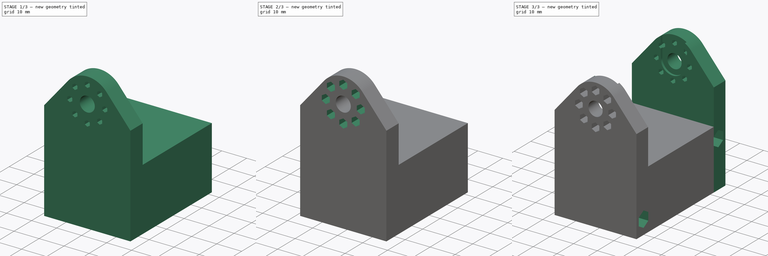
[diagram: build sequence overview — one tinted view per stage of 3, left to right]
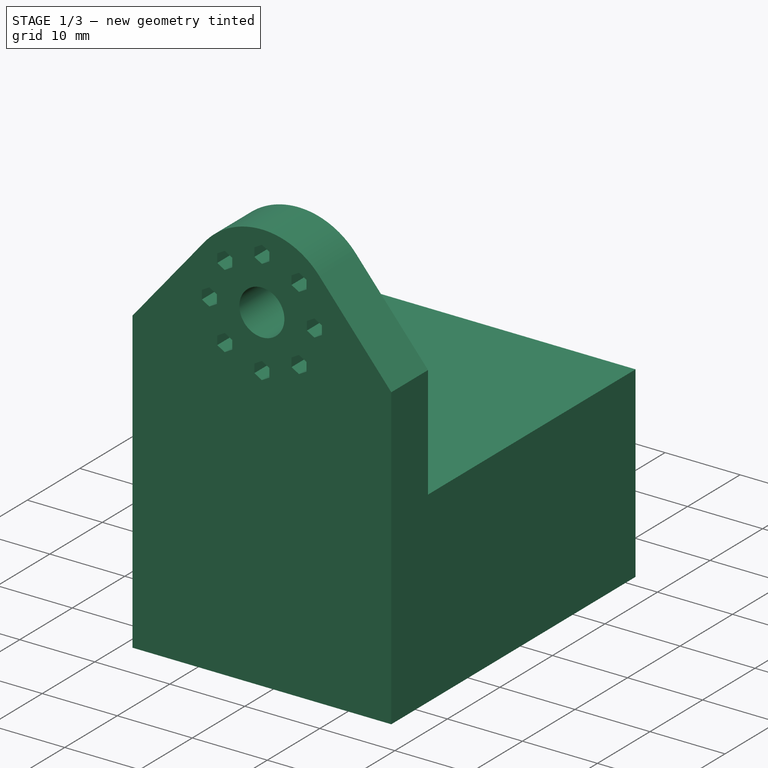
[diagram: stage 1 of 3 — iso view after this stage's code; geometry added in this stage tinted green]
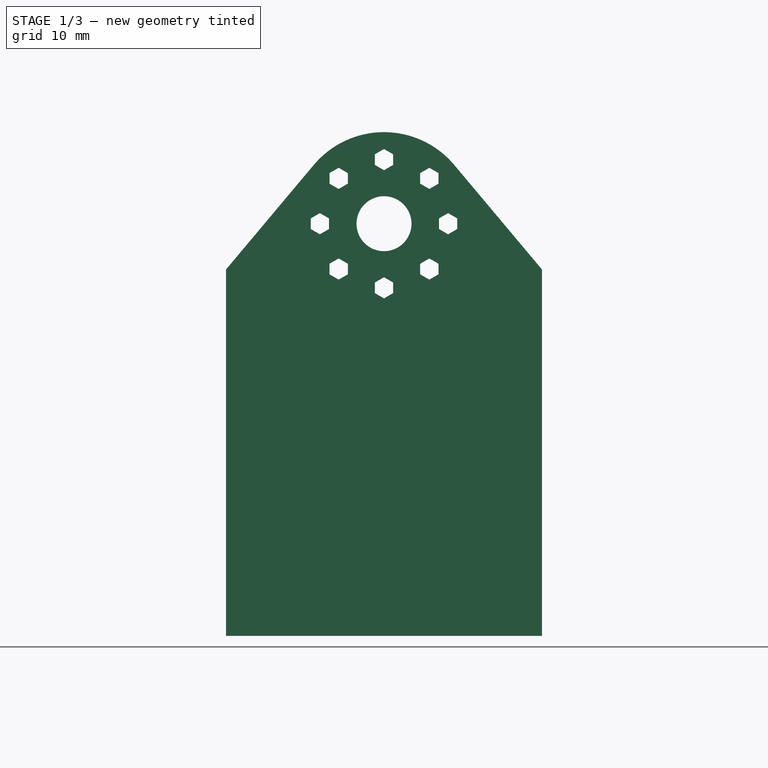
[diagram: stage 1 of 3 — front view after this stage's code; geometry added in this stage tinted green]
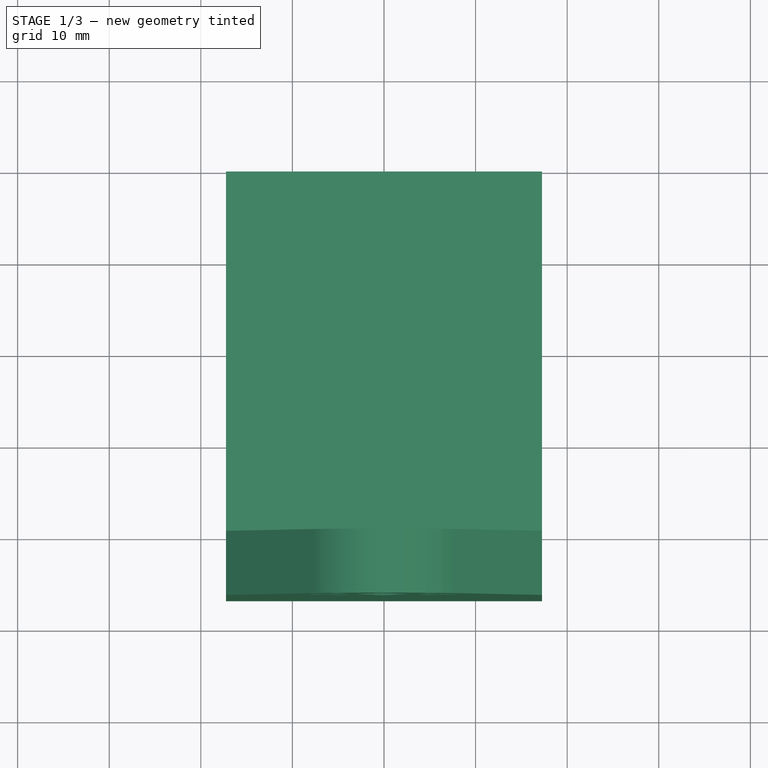
[diagram: stage 1 of 3 — top view after this stage's code; geometry added in this stage tinted green]
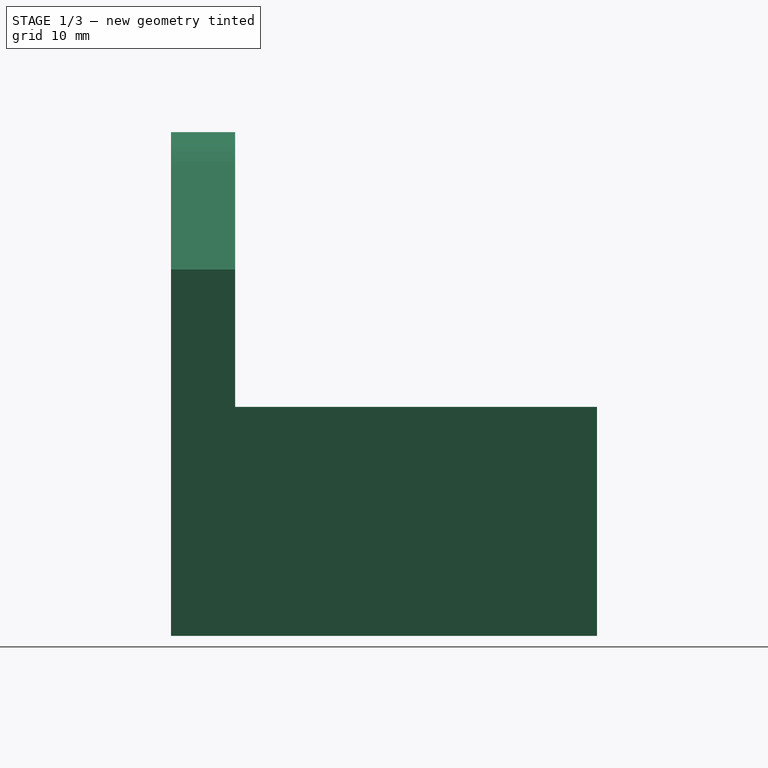
[diagram: stage 1 of 3 — right view after this stage's code; geometry added in this stage tinted green]
FCSTD DOCUMENT  (FreeCAD 0.21R33668 +26 (Git))
Label: Leg_roll_pitch
License: All rights reserved
LicenseURL: https://en.wikipedia.org/wiki/All_rights_reserved
objects: Sketcher::SketchObject×6, PartDesign::Pocket×4, PartDesign::Pad×2, PartDesign::Chamfer×1, PartDesign::Mirrored×1, PartDesign::Body×1
note: 22 computed .brp shape members not serialized (recipe doc carries the construction recipe); baked Part::Feature solids carry a one-line shape summary decoded from their .brp

FEATURE [Sketcher::SketchObject] Sketch001
  FullyConstrained = true
  MapMode = 5
  Support = -> [XY_Plane]
  expr: Constraints[11] = 39.5 - 2 - 2 - 1
  sketch-geometry (5):
    g0: LineSegment StartX=17.25 StartY=-19.75 StartZ=0 EndX=17.25 EndY=19.75 EndZ=0
    g1: LineSegment StartX=17.25 StartY=19.75 StartZ=0 EndX=-17.25 EndY=19.75 EndZ=0
    g2: LineSegment StartX=-17.25 StartY=19.75 StartZ=0 EndX=-17.25 EndY=-19.75 EndZ=0
    g3: LineSegment StartX=-17.25 StartY=-19.75 StartZ=0 EndX=17.25 EndY=-19.75 EndZ=0
    g4: GeomPoint X=0 Y=0 Z=0
  constraints (12):
    c: Coincident(g0,g1)
    c: Coincident(g1,g2)
    c: Coincident(g2,g3)
    c: Coincident(g3,g0)
    c: Horizontal(g1)
    c: Horizontal(g3)
    c: Vertical(g0)
    c: Vertical(g2)
    c: Symmetric(g1,g0,g4)
    c: Coincident(g4,g-1)
    c: DistanceY(g2,g2) = 39.5
    c: DistanceX(g1,g1) = 34.5
FEATURE [PartDesign::Pad] Pad
  Direction = (0,0,1)
  Length = 25
  Length2 = 10
  Profile = -> Sketch001
  ReferenceAxis = -> Sketch001 [N_Axis]
  Type = 0
FEATURE [Sketcher::SketchObject] Sketch
  ExternalGeometry = -> [Pad]
  FullyConstrained = true
  MapMode = 5
  Placement = pos=(0,-19.75,0) rot=(1,0,0;1.5708rad)
  Support = -> [Pad]
  sketch-geometry (7):
    g0: Circle CenterX=0 CenterY=45 CenterZ=0 NormalX=0 NormalY=0 NormalZ=1 AngleXU=0 Radius=3
    g1: ArcOfCircle CenterX=0 CenterY=45 CenterZ=0 NormalX=0 NormalY=0 NormalZ=1 AngleXU=0 Radius=10 StartAngle=0.698154 EndAngle=2.44344
    g2: LineSegment StartX=-17.25 StartY=0 StartZ=0 EndX=17.25 EndY=0 EndZ=0
    g3: LineSegment StartX=-7.6603 StartY=51.428 StartZ=0 EndX=-17.25 EndY=40 EndZ=0
    g4: LineSegment StartX=-17.25 StartY=40 StartZ=0 EndX=-17.25 EndY=0 EndZ=0
    g5: LineSegment StartX=7.6603 StartY=51.428 StartZ=0 EndX=17.25 EndY=40 EndZ=0
    g6: LineSegment StartX=17.25 StartY=40 StartZ=0 EndX=17.25 EndY=0 EndZ=0
  constraints (17):
    c: Coincident(g1,g0)
    c: Coincident(g2,g-3)
    c: Coincident(g2,g-4)
    c: Coincident(g4,g3)
    c: Coincident(g4,g2)
    c: Coincident(g6,g5)
    c: Coincident(g6,g2)
    c: PointOnObject(g-3,g4)
    c: PointOnObject(g-4,g6)
    c: Tangent(g3,g1) = -1.5708
    c: Tangent(g5,g1) = 1.5708
    c: PointOnObject(g0,g-2)
    c: DistanceY(g-4,g0) = 20
    c: DistanceY(g-4,g5) = 15
    c: Equal(g4,g6)
    c: Diameter(g1) = 20
    c: Diameter(g0) = 6
FEATURE [PartDesign::Pad] Pad001
  BaseFeature = -> Pad
  Direction = (0,-1,2e-16)
  Length = 7
  Length2 = 10
  Profile = -> Sketch
  ReferenceAxis = -> Sketch [N_Axis]
  Type = 0
FEATURE [Sketcher::SketchObject] Sketch002
  ExternalGeometry = -> [Pad001]
  FullyConstrained = true
  MapMode = 5
  Placement = pos=(0,-26.75,5.3e-15) rot=(1,0,0;1.5708rad)
  Support = -> [Pad001]
  sketch-geometry (60):
    g0: Circle CenterX=0 CenterY=45 CenterZ=0 NormalX=0 NormalY=0 NormalZ=1 AngleXU=0 Radius=7
    g1: LineSegment StartX=0 StartY=39.1547 StartZ=0 EndX=-1 EndY=38.5774 EndZ=0
    g2: LineSegment StartX=-1 StartY=38.5774 StartZ=0 EndX=-1 EndY=37.4226 EndZ=0
    g3: LineSegment StartX=-1 StartY=37.4226 StartZ=0 EndX=0 EndY=36.8453 EndZ=0
    g4: LineSegment StartX=0 StartY=36.8453 StartZ=0 EndX=1 EndY=37.4226 EndZ=0
    g5: LineSegment StartX=1 StartY=37.4226 StartZ=0 EndX=1 EndY=38.5774 EndZ=0
    g6: LineSegment StartX=1 StartY=38.5774 StartZ=0 EndX=0 EndY=39.1547 EndZ=0
    g7: Circle CenterX=0 CenterY=38 CenterZ=0 NormalX=0 NormalY=0 NormalZ=1 AngleXU=0 Radius=1.1547
    g8: Circle CenterX=0 CenterY=38 CenterZ=0 NormalX=0 NormalY=0 NormalZ=1 AngleXU=0 Radius=1
    g9: LineSegment StartX=-6 StartY=45.5774 StartZ=0 EndX=-7 EndY=46.1547 EndZ=0
    g10: LineSegment StartX=-7 StartY=46.1547 StartZ=0 EndX=-8 EndY=45.5774 EndZ=0
    g11: LineSegment StartX=-8 StartY=45.5774 StartZ=0 EndX=-8 EndY=44.4226 EndZ=0
    g12: LineSegment StartX=-8 StartY=44.4226 StartZ=0 EndX=-7 EndY=43.8453 EndZ=0
    g13: LineSegment StartX=-7 StartY=43.8453 StartZ=0 EndX=-6 EndY=44.4226 EndZ=0
    g14: LineSegment StartX=-6 StartY=44.4226 StartZ=0 EndX=-6 EndY=45.5774 EndZ=0
    g15: Circle CenterX=-7 CenterY=45 CenterZ=0 NormalX=0 NormalY=0 NormalZ=1 AngleXU=0 Radius=1.1547
    g16: LineSegment StartX=1 StartY=51.4226 StartZ=0 EndX=1 EndY=52.5774 EndZ=0
    g17: LineSegment StartX=1 StartY=52.5774 StartZ=0 EndX=4.92218e-11 EndY=53.1547 EndZ=0
    g18: LineSegment StartX=4.92218e-11 StartY=53.1547 StartZ=0 EndX=-1 EndY=52.5774 EndZ=0
    g19: LineSegment StartX=-1 StartY=52.5774 StartZ=0 EndX=-1 EndY=51.4226 EndZ=0
    g20: LineSegment StartX=-1 StartY=51.4226 StartZ=0 EndX=-8.864e-13 EndY=50.8453 EndZ=0
    g21: LineSegment StartX=-8.864e-13 StartY=50.8453 StartZ=0 EndX=1 EndY=51.4226 EndZ=0
    g22: Circle CenterX=0 CenterY=52 CenterZ=0 NormalX=0 NormalY=0 NormalZ=1 AngleXU=0 Radius=1.1547
    g23: LineSegment StartX=8 StartY=44.4226 StartZ=0 EndX=8 EndY=45.5774 EndZ=0
    g24: LineSegment StartX=8 StartY=45.5774 StartZ=0 EndX=7 EndY=46.1547 EndZ=0
    g25: LineSegment StartX=7 StartY=46.1547 StartZ=0 EndX=6 EndY=45.5774 EndZ=0
    g26: LineSegment StartX=6 StartY=45.5774 StartZ=0 EndX=6 EndY=44.4226 EndZ=0
    g27: LineSegment StartX=6 StartY=44.4226 StartZ=0 EndX=7 EndY=43.8453 EndZ=0
    g28: LineSegment StartX=7 StartY=43.8453 StartZ=0 EndX=8 EndY=44.4226 EndZ=0
    g29: Circle CenterX=7 CenterY=45 CenterZ=0 NormalX=0 NormalY=0 NormalZ=1 AngleXU=0 Radius=1.1547
    g30: LineSegment StartX=4.94975 StartY=51.1044 StartZ=0 EndX=3.94975 EndY=50.5271 EndZ=0
    g31: LineSegment StartX=3.94975 StartY=50.5271 StartZ=0 EndX=3.94975 EndY=49.3724 EndZ=0
    g32: LineSegment StartX=3.94975 StartY=49.3724 StartZ=0 EndX=4.94975 EndY=48.795 EndZ=0
    g33: LineSegment StartX=4.94975 StartY=48.795 StartZ=0 EndX=5.94975 EndY=49.3724 EndZ=0
    g34: LineSegment StartX=5.94975 StartY=49.3724 StartZ=0 EndX=5.94975 EndY=50.5271 EndZ=0
    g35: LineSegment StartX=5.94975 StartY=50.5271 StartZ=0 EndX=4.94975 EndY=51.1044 EndZ=0
    g36: Circle CenterX=4.94975 CenterY=49.9497 CenterZ=0 NormalX=0 NormalY=0 NormalZ=1 AngleXU=0 Radius=1.1547
    g37: LineSegment StartX=-4.94975 StartY=51.1044 StartZ=0 EndX=-5.94975 EndY=50.5271 EndZ=0
    g38: LineSegment StartX=-5.94975 StartY=50.5271 StartZ=0 EndX=-5.94975 EndY=49.3724 EndZ=0
    g39: LineSegment StartX=-5.94975 StartY=49.3724 StartZ=0 EndX=-4.94975 EndY=48.795 EndZ=0
    g40: LineSegment StartX=-4.94975 StartY=48.795 StartZ=0 EndX=-3.94975 EndY=49.3724 EndZ=0
    g41: LineSegment StartX=-3.94975 StartY=49.3724 StartZ=0 EndX=-3.94975 EndY=50.5271 EndZ=0
    g42: LineSegment StartX=-3.94975 StartY=50.5271 StartZ=0 EndX=-4.94975 EndY=51.1044 EndZ=0
    g43: Circle CenterX=-4.94975 CenterY=49.9497 CenterZ=0 NormalX=0 NormalY=0 NormalZ=1 AngleXU=0 Radius=1.1547
    g44: LineSegment StartX=-4.94975 StartY=41.205 StartZ=0 EndX=-5.94975 EndY=40.6276 EndZ=0
    g45: LineSegment StartX=-5.94975 StartY=40.6276 StartZ=0 EndX=-5.94975 EndY=39.4729 EndZ=0
    g46: LineSegment StartX=-5.94975 StartY=39.4729 StartZ=0 EndX=-4.94975 EndY=38.8956 EndZ=0
    g47: LineSegment StartX=-4.94975 StartY=38.8956 StartZ=0 EndX=-3.94975 EndY=39.4729 EndZ=0
    g48: LineSegment StartX=-3.94975 StartY=39.4729 StartZ=0 EndX=-3.94975 EndY=40.6276 EndZ=0
    g49: LineSegment StartX=-3.94975 StartY=40.6276 StartZ=0 EndX=-4.94975 EndY=41.205 EndZ=0
    g50: Circle CenterX=-4.94975 CenterY=40.0503 CenterZ=0 NormalX=0 NormalY=0 NormalZ=1 AngleXU=0 Radius=1.1547
    g51: LineSegment StartX=4.94975 StartY=41.205 StartZ=0 EndX=3.94975 EndY=40.6276 EndZ=0
    g52: LineSegment StartX=3.94975 StartY=40.6276 StartZ=0 EndX=3.94975 EndY=39.4729 EndZ=0
    g53: LineSegment StartX=3.94975 StartY=39.4729 StartZ=0 EndX=4.94975 EndY=38.8956 EndZ=0
    g54: LineSegment StartX=4.94975 StartY=38.8956 StartZ=0 EndX=5.94975 EndY=39.4729 EndZ=0
    g55: LineSegment StartX=5.94975 StartY=39.4729 StartZ=0 EndX=5.94975 EndY=40.6276 EndZ=0
    g56: LineSegment StartX=5.94975 StartY=40.6276 StartZ=0 EndX=4.94975 EndY=41.205 EndZ=0
    g57: Circle CenterX=4.94975 CenterY=40.0503 CenterZ=0 NormalX=0 NormalY=0 NormalZ=1 AngleXU=0 Radius=1.1547
    g58: LineSegment StartX=-4.94975 StartY=49.9497 StartZ=0 EndX=4.94975 EndY=40.0503 EndZ=0
    g59: LineSegment StartX=-4.94975 StartY=40.0503 StartZ=0 EndX=4.94975 EndY=49.9497 EndZ=0
  constraints (144):
    c: Coincident(g0,g-3)
    c: Diameter(g0) = 14
    c: Coincident(g1,g2)
    c: Coincident(g2,g3)
    c: Coincident(g3,g4)
    c: Coincident(g4,g5)
    c: Coincident(g5,g6)
    c: Coincident(g6,g1)
    c: Equal(g1, g2-g6) x5
    c: PointOnObject(g1,g7)
    c: PointOnObject(g2,g7)
    c: PointOnObject(g3,g7)
    c: PointOnObject(g4,g7)
    c: PointOnObject(g5,g7)
    c: PointOnObject(g6,g7)
    c: PointOnObject(g7,g0)
    c: PointOnObject(g7,g-2)
    c: PointOnObject(g1,g-2)
    c: Coincident(g8,g7)
    c: Diameter(g8) = 2
    c: Tangent(g8,g6)
    c: Coincident(g9,g10)
    c: Coincident(g10,g11)
    c: Coincident(g11,g12)
    c: Coincident(g12,g13)
    c: Coincident(g13,g14)
    c: Coincident(g14,g9)
    c: Equal(g9, g10-g14) x5
    c: PointOnObject(g9,g15)
    c: PointOnObject(g10,g15)
    c: PointOnObject(g11,g15)
    c: PointOnObject(g12,g15)
    c: PointOnObject(g13,g15)
    c: PointOnObject(g14,g15)
    c: PointOnObject(g15,g0)
    c: Coincident(g16,g17)
    c: Coincident(g17,g18)
    c: Coincident(g18,g19)
    c: Coincident(g19,g20)
    c: Coincident(g20,g21)
    c: Coincident(g21,g16)
    c: Equal(g16, g17-g21) x5
    c: PointOnObject(g16,g22)
    c: PointOnObject(g17,g22)
    c: PointOnObject(g18,g22)
    c: PointOnObject(g19,g22)
    c: PointOnObject(g20,g22)
    c: PointOnObject(g21,g22)
    c: PointOnObject(g22,g0)
    c: Coincident(g23,g24)
    c: Coincident(g24,g25)
    c: Coincident(g25,g26)
    c: Coincident(g26,g27)
    c: Coincident(g27,g28)
    c: Coincident(g28,g23)
    c: Equal(g23, g24-g28) x5
    c: PointOnObject(g23,g29)
    c: PointOnObject(g24,g29)
    c: PointOnObject(g25,g29)
    c: PointOnObject(g26,g29)
    c: PointOnObject(g27,g29)
    c: PointOnObject(g28,g29)
    c: PointOnObject(g29,g0)
    c: Coincident(g30,g31)
    c: Coincident(g31,g32)
    c: Coincident(g32,g33)
    c: Coincident(g33,g34)
    c: Coincident(g34,g35)
    c: Coincident(g35,g30)
    c: Equal(g30, g31-g35) x5
    c: PointOnObject(g30,g36)
    c: PointOnObject(g31,g36)
    c: PointOnObject(g32,g36)
    c: PointOnObject(g33,g36)
    c: PointOnObject(g34,g36)
    c: PointOnObject(g35,g36)
    c: PointOnObject(g36,g0)
    c: Coincident(g37,g38)
    c: Coincident(g38,g39)
    c: Coincident(g39,g40)
    c: Coincident(g40,g41)
    c: Coincident(g41,g42)
    c: Coincident(g42,g37)
    c: Equal(g37, g38-g42) x5
    c: PointOnObject(g37,g43)
    c: PointOnObject(g38,g43)
    c: PointOnObject(g39,g43)
    c: PointOnObject(g40,g43)
    c: PointOnObject(g41,g43)
    c: PointOnObject(g42,g43)
    c: PointOnObject(g43,g0)
    c: Coincident(g44,g45)
    c: Coincident(g45,g46)
    c: Coincident(g46,g47)
    c: Coincident(g47,g48)
    c: Coincident(g48,g49)
    c: Coincident(g49,g44)
    c: Equal(g44, g45-g49) x5
    c: PointOnObject(g44,g50)
    c: PointOnObject(g45,g50)
    c: PointOnObject(g46,g50)
    c: PointOnObject(g47,g50)
    c: PointOnObject(g48,g50)
    c: PointOnObject(g49,g50)
    c: PointOnObject(g50,g0)
    c: Coincident(g51,g52)
    c: Coincident(g52,g53)
    c: Coincident(g53,g54)
    c: Coincident(g54,g55)
    c: Coincident(g55,g56)
    c: Coincident(g56,g51)
    c: Equal(g51, g52-g56) x5
    c: PointOnObject(g51,g57)
    c: PointOnObject(g52,g57)
    c: PointOnObject(g53,g57)
    c: PointOnObject(g54,g57)
    c: PointOnObject(g55,g57)
    c: PointOnObject(g56,g57)
    c: PointOnObject(g57,g0)
    c: PointOnObject(g22,g-2)
    c: Equal(g50,g7)
    c: Equal(g7,g15)
    c: Equal(g15,g43)
    c: Equal(g43,g22)
    c: Equal(g22,g36)
    c: Equal(g36,g29)
    c: Equal(g29,g57)
    c: Vertical(g48)
    c: Vertical(g14)
    c: Vertical(g41)
    c: Vertical(g34)
    c: Vertical(g23)
    c: Vertical(g55)
    c: Horizontal(g0,g29)
    c: Horizontal(g15,g0)
    c: Coincident(g58,g43)
    c: Coincident(g58,g57)
    c: Coincident(g59,g50)
    c: Coincident(g59,g36)
    c: PointOnObject(g0,g59)
    c: PointOnObject(g0,g58)
    c: Perpendicular(g59,g58)
    c: Angle(g59,g-2) = 0.785398
    c: Vertical(g16)
FEATURE [PartDesign::Pocket] Pocket
  BaseFeature = -> Pad001
  Direction = (0,1,-2e-16)
  Length = 5
  Length2 = 5
  Profile = -> Sketch002
  ReferenceAxis = -> Sketch002 [N_Axis]
  Type = 1
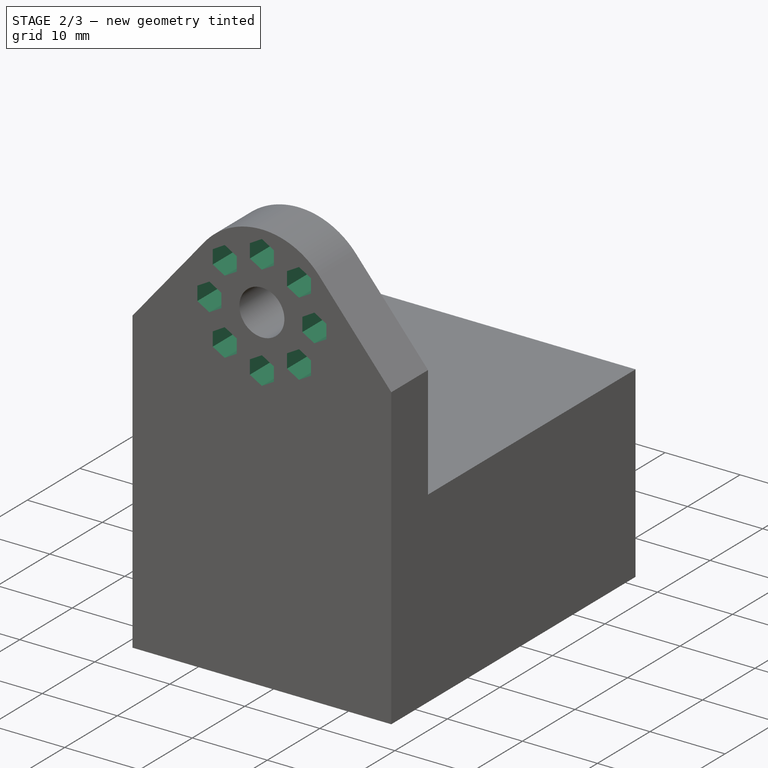
[diagram: stage 2 of 3 — iso view after this stage's code; geometry added in this stage tinted green]
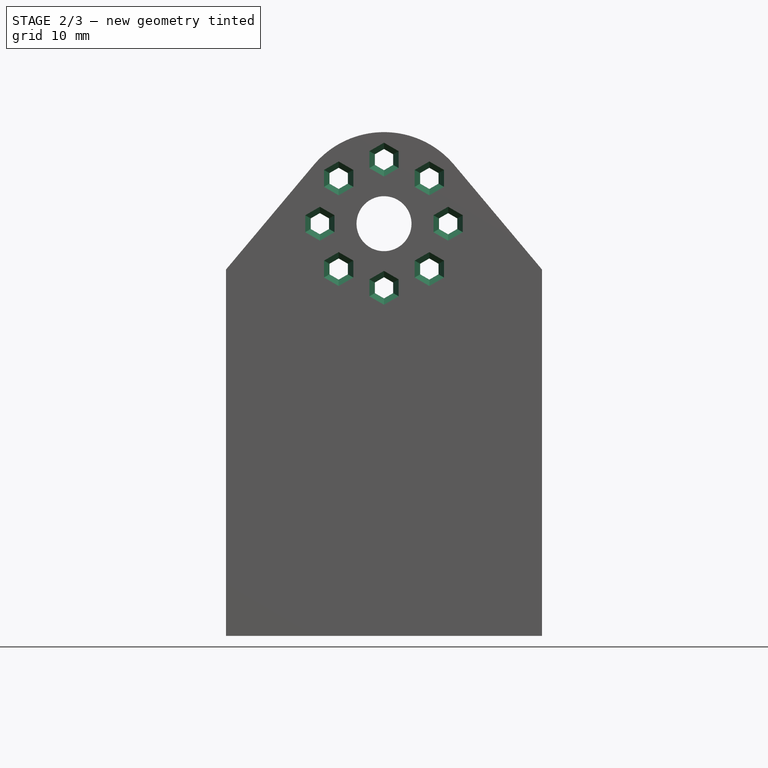
[diagram: stage 2 of 3 — front view after this stage's code; geometry added in this stage tinted green]
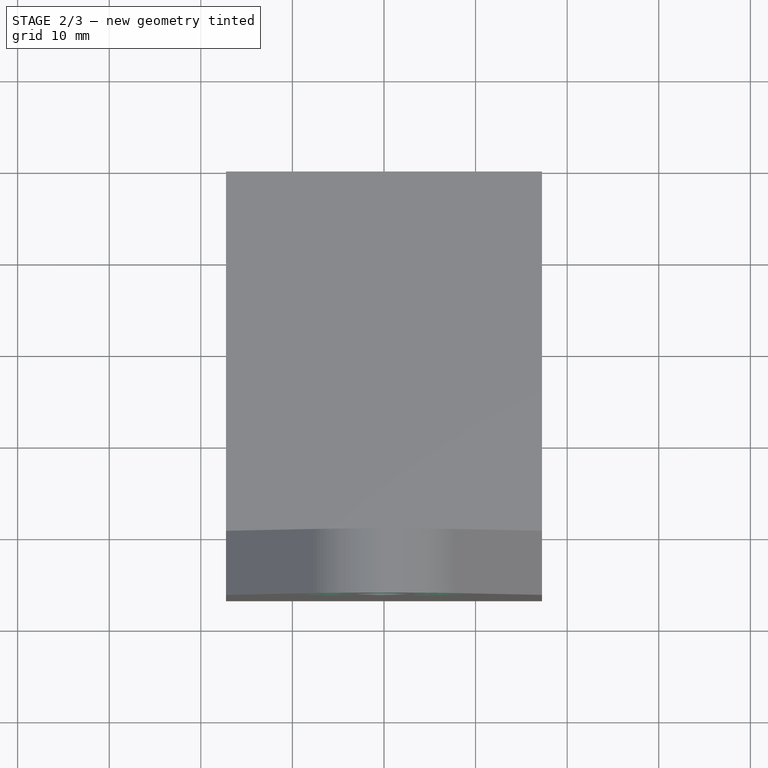
[diagram: stage 2 of 3 — top view after this stage's code; geometry added in this stage tinted green]
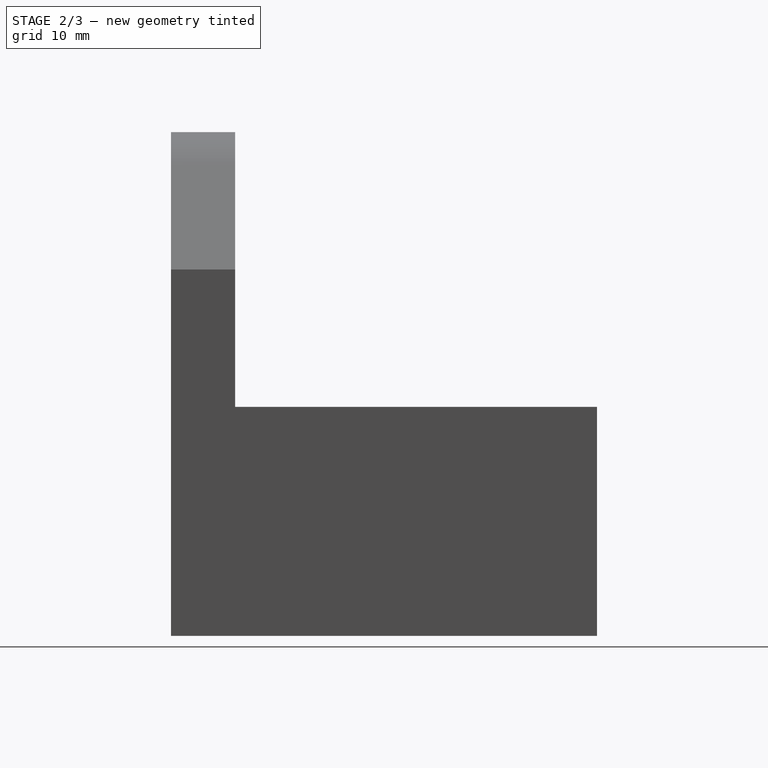
[diagram: stage 2 of 3 — right view after this stage's code; geometry added in this stage tinted green]
FEATURE [Sketcher::SketchObject] Sketch003
  ExternalGeometry = -> [Pocket]
  FullyConstrained = true
  MapMode = 5
  Placement = pos=(0,-26.75,5.3e-15) rot=(1,0,0;1.5708rad)
  Support = -> [Pocket]
  sketch-geometry (60):
    g0: Circle CenterX=0 CenterY=45 CenterZ=0 NormalX=0 NormalY=0 NormalZ=1 AngleXU=0 Radius=7
    g1: LineSegment StartX=0 StartY=39.8475 StartZ=0 EndX=-1.6 EndY=38.9238 EndZ=0
    g2: LineSegment StartX=-1.6 StartY=38.9238 StartZ=0 EndX=-1.6 EndY=37.0762 EndZ=0
    g3: LineSegment StartX=-1.6 StartY=37.0762 StartZ=0 EndX=0 EndY=36.1525 EndZ=0
    g4: LineSegment StartX=0 StartY=36.1525 StartZ=0 EndX=1.6 EndY=37.0762 EndZ=0
    g5: LineSegment StartX=1.6 StartY=37.0762 StartZ=0 EndX=1.6 EndY=38.9238 EndZ=0
    g6: LineSegment StartX=1.6 StartY=38.9238 StartZ=0 EndX=0 EndY=39.8475 EndZ=0
    g7: Circle CenterX=0 CenterY=38 CenterZ=0 NormalX=0 NormalY=0 NormalZ=1 AngleXU=0 Radius=1.84752
    g8: Circle CenterX=0 CenterY=38 CenterZ=0 NormalX=0 NormalY=0 NormalZ=1 AngleXU=0 Radius=1.6
    g9: LineSegment StartX=-4.94975 StartY=38.2027 StartZ=0 EndX=-3.34975 EndY=39.1265 EndZ=0
    g10: LineSegment StartX=-3.34975 StartY=39.1265 StartZ=0 EndX=-3.34975 EndY=40.974 EndZ=0
    g11: LineSegment StartX=-3.34975 StartY=40.974 StartZ=0 EndX=-4.94975 EndY=41.8978 EndZ=0
    g12: LineSegment StartX=-4.94975 StartY=41.8978 StartZ=0 EndX=-6.54975 EndY=40.974 EndZ=0
    g13: LineSegment StartX=-6.54975 StartY=40.974 StartZ=0 EndX=-6.54975 EndY=39.1265 EndZ=0
    g14: LineSegment StartX=-6.54975 StartY=39.1265 StartZ=0 EndX=-4.94975 EndY=38.2027 EndZ=0
    g15: Circle CenterX=-4.94975 CenterY=40.0503 CenterZ=0 NormalX=0 NormalY=0 NormalZ=1 AngleXU=0 Radius=1.84752
    g16: LineSegment StartX=-7 StartY=46.8475 StartZ=0 EndX=-8.6 EndY=45.9238 EndZ=0
    g17: LineSegment StartX=-8.6 StartY=45.9238 StartZ=0 EndX=-8.6 EndY=44.0762 EndZ=0
    g18: LineSegment StartX=-8.6 StartY=44.0762 StartZ=0 EndX=-7 EndY=43.1525 EndZ=0
    g19: LineSegment StartX=-7 StartY=43.1525 StartZ=0 EndX=-5.4 EndY=44.0762 EndZ=0
    g20: LineSegment StartX=-5.4 StartY=44.0762 StartZ=0 EndX=-5.4 EndY=45.9238 EndZ=0
    g21: LineSegment StartX=-5.4 StartY=45.9238 StartZ=0 EndX=-7 EndY=46.8475 EndZ=0
    g22: Circle CenterX=-7 CenterY=45 CenterZ=0 NormalX=0 NormalY=0 NormalZ=1 AngleXU=0 Radius=1.84752
    g23: LineSegment StartX=-4.94975 StartY=51.7973 StartZ=0 EndX=-6.54975 EndY=50.8735 EndZ=0
    g24: LineSegment StartX=-6.54975 StartY=50.8735 StartZ=0 EndX=-6.54975 EndY=49.026 EndZ=0
    g25: LineSegment StartX=-6.54975 StartY=49.026 StartZ=0 EndX=-4.94975 EndY=48.1022 EndZ=0
    g26: LineSegment StartX=-4.94975 StartY=48.1022 StartZ=0 EndX=-3.34975 EndY=49.026 EndZ=0
    g27: LineSegment StartX=-3.34975 StartY=49.026 StartZ=0 EndX=-3.34975 EndY=50.8735 EndZ=0
    g28: LineSegment StartX=-3.34975 StartY=50.8735 StartZ=0 EndX=-4.94975 EndY=51.7973 EndZ=0
    g29: Circle CenterX=-4.94975 CenterY=49.9497 CenterZ=0 NormalX=0 NormalY=0 NormalZ=1 AngleXU=0 Radius=1.84752
    g30: LineSegment StartX=0 StartY=50.1525 StartZ=0 EndX=1.6 EndY=51.0762 EndZ=0
    g31: LineSegment StartX=1.6 StartY=51.0762 StartZ=0 EndX=1.6 EndY=52.9238 EndZ=0
    g32: LineSegment StartX=1.6 StartY=52.9238 StartZ=0 EndX=0 EndY=53.8475 EndZ=0
    g33: LineSegment StartX=0 StartY=53.8475 StartZ=0 EndX=-1.6 EndY=52.9238 EndZ=0
    g34: LineSegment StartX=-1.6 StartY=52.9238 StartZ=0 EndX=-1.6 EndY=51.0762 EndZ=0
    g35: LineSegment StartX=-1.6 StartY=51.0762 StartZ=0 EndX=0 EndY=50.1525 EndZ=0
    g36: Circle CenterX=0 CenterY=52 CenterZ=0 NormalX=0 NormalY=0 NormalZ=1 AngleXU=0 Radius=1.84752
    g37: LineSegment StartX=4.94975 StartY=51.7973 StartZ=0 EndX=3.34975 EndY=50.8735 EndZ=0
    g38: LineSegment StartX=3.34975 StartY=50.8735 StartZ=0 EndX=3.34975 EndY=49.026 EndZ=0
    g39: LineSegment StartX=3.34975 StartY=49.026 StartZ=0 EndX=4.94975 EndY=48.1022 EndZ=0
    g40: LineSegment StartX=4.94975 StartY=48.1022 StartZ=0 EndX=6.54975 EndY=49.026 EndZ=0
    g41: LineSegment StartX=6.54975 StartY=49.026 StartZ=0 EndX=6.54975 EndY=50.8735 EndZ=0
    g42: LineSegment StartX=6.54975 StartY=50.8735 StartZ=0 EndX=4.94975 EndY=51.7973 EndZ=0
    g43: Circle CenterX=4.94975 CenterY=49.9497 CenterZ=0 NormalX=0 NormalY=0 NormalZ=1 AngleXU=0 Radius=1.84752
    g44: LineSegment StartX=7 StartY=46.8475 StartZ=0 EndX=5.4 EndY=45.9238 EndZ=0
    g45: LineSegment StartX=5.4 StartY=45.9238 StartZ=0 EndX=5.4 EndY=44.0762 EndZ=0
    g46: LineSegment StartX=5.4 StartY=44.0762 StartZ=0 EndX=7 EndY=43.1525 EndZ=0
    g47: LineSegment StartX=7 StartY=43.1525 StartZ=0 EndX=8.6 EndY=44.0762 EndZ=0
    g48: LineSegment StartX=8.6 StartY=44.0762 StartZ=0 EndX=8.6 EndY=45.9238 EndZ=0
    g49: LineSegment StartX=8.6 StartY=45.9238 StartZ=0 EndX=7 EndY=46.8475 EndZ=0
    g50: Circle CenterX=7 CenterY=45 CenterZ=0 NormalX=0 NormalY=0 NormalZ=1 AngleXU=0 Radius=1.84752
    g51: LineSegment StartX=4.94975 StartY=41.8978 StartZ=0 EndX=3.34975 EndY=40.974 EndZ=0
    g52: LineSegment StartX=3.34975 StartY=40.974 StartZ=0 EndX=3.34975 EndY=39.1265 EndZ=0
    g53: LineSegment StartX=3.34975 StartY=39.1265 StartZ=0 EndX=4.94975 EndY=38.2027 EndZ=0
    g54: LineSegment StartX=4.94975 StartY=38.2027 StartZ=0 EndX=6.54975 EndY=39.1265 EndZ=0
    g55: LineSegment StartX=6.54975 StartY=39.1265 StartZ=0 EndX=6.54975 EndY=40.974 EndZ=0
    g56: LineSegment StartX=6.54975 StartY=40.974 StartZ=0 EndX=4.94975 EndY=41.8978 EndZ=0
    g57: Circle CenterX=4.94975 CenterY=40.0503 CenterZ=0 NormalX=0 NormalY=0 NormalZ=1 AngleXU=0 Radius=1.84752
    g58: LineSegment StartX=-4.94975 StartY=49.9497 StartZ=0 EndX=4.94975 EndY=40.0503 EndZ=0
    g59: LineSegment StartX=-4.94975 StartY=40.0503 StartZ=0 EndX=4.94975 EndY=49.9497 EndZ=0
  constraints (144):
    c: Diameter(g0) = 14
    c: Coincident(g1,g2)
    c: Coincident(g2,g3)
    c: Coincident(g3,g4)
    c: Coincident(g4,g5)
    c: Coincident(g5,g6)
    c: Coincident(g6,g1)
    c: Equal(g1, g2-g6) x5
    c: PointOnObject(g1,g7)
    c: PointOnObject(g2,g7)
    c: PointOnObject(g3,g7)
    c: PointOnObject(g4,g7)
    c: PointOnObject(g5,g7)
    c: PointOnObject(g6,g7)
    c: PointOnObject(g7,g0)
    c: PointOnObject(g7,g-2)
    c: PointOnObject(g1,g-2)
    c: Coincident(g8,g7)
    c: Tangent(g8,g6)
    c: Diameter(g8) = 3.2
    c: Coincident(g0,g-3)
    c: Coincident(g9,g10)
    c: Coincident(g10,g11)
    c: Coincident(g11,g12)
    c: Coincident(g12,g13)
    c: Coincident(g13,g14)
    c: Coincident(g14,g9)
    c: Equal(g9, g10-g14) x5
    c: PointOnObject(g9,g15)
    c: PointOnObject(g10,g15)
    c: PointOnObject(g11,g15)
    c: PointOnObject(g12,g15)
    c: PointOnObject(g13,g15)
    c: PointOnObject(g14,g15)
    c: PointOnObject(g15,g0)
    c: Coincident(g16,g17)
    c: Coincident(g17,g18)
    c: Coincident(g18,g19)
    c: Coincident(g19,g20)
    c: Coincident(g20,g21)
    c: Coincident(g21,g16)
    c: Equal(g16, g17-g21) x5
    c: PointOnObject(g16,g22)
    c: PointOnObject(g17,g22)
    c: PointOnObject(g18,g22)
    c: PointOnObject(g19,g22)
    c: PointOnObject(g20,g22)
    c: PointOnObject(g21,g22)
    c: PointOnObject(g22,g0)
    c: Coincident(g23,g24)
    c: Coincident(g24,g25)
    c: Coincident(g25,g26)
    c: Coincident(g26,g27)
    c: Coincident(g27,g28)
    c: Coincident(g28,g23)
    c: Equal(g23, g24-g28) x5
    c: PointOnObject(g23,g29)
    c: PointOnObject(g24,g29)
    c: PointOnObject(g25,g29)
    c: PointOnObject(g26,g29)
    c: PointOnObject(g27,g29)
    c: PointOnObject(g28,g29)
    c: PointOnObject(g29,g0)
    c: Coincident(g30,g31)
    c: Coincident(g31,g32)
    c: Coincident(g32,g33)
    c: Coincident(g33,g34)
    c: Coincident(g34,g35)
    c: Coincident(g35,g30)
    c: Equal(g30, g31-g35) x5
    c: PointOnObject(g30,g36)
    c: PointOnObject(g31,g36)
    c: PointOnObject(g32,g36)
    c: PointOnObject(g33,g36)
    c: PointOnObject(g34,g36)
    c: PointOnObject(g35,g36)
    c: PointOnObject(g36,g0)
    c: Coincident(g37,g38)
    c: Coincident(g38,g39)
    c: Coincident(g39,g40)
    c: Coincident(g40,g41)
    c: Coincident(g41,g42)
    c: Coincident(g42,g37)
    c: Equal(g37, g38-g42) x5
    c: PointOnObject(g37,g43)
    c: PointOnObject(g38,g43)
    c: PointOnObject(g39,g43)
    c: PointOnObject(g40,g43)
    c: PointOnObject(g41,g43)
    c: PointOnObject(g42,g43)
    c: PointOnObject(g43,g0)
    c: Coincident(g44,g45)
    c: Coincident(g45,g46)
    c: Coincident(g46,g47)
    c: Coincident(g47,g48)
    c: Coincident(g48,g49)
    c: Coincident(g49,g44)
    c: Equal(g44, g45-g49) x5
    c: PointOnObject(g44,g50)
    c: PointOnObject(g45,g50)
    c: PointOnObject(g46,g50)
    c: PointOnObject(g47,g50)
    c: PointOnObject(g48,g50)
    c: PointOnObject(g49,g50)
    c: PointOnObject(g50,g0)
    c: Coincident(g51,g52)
    c: Coincident(g52,g53)
    c: Coincident(g53,g54)
    c: Coincident(g54,g55)
    c: Coincident(g55,g56)
    c: Coincident(g56,g51)
    c: Equal(g51, g52-g56) x5
    c: PointOnObject(g51,g57)
    c: PointOnObject(g52,g57)
    c: PointOnObject(g53,g57)
    c: PointOnObject(g54,g57)
    c: PointOnObject(g55,g57)
    c: PointOnObject(g56,g57)
    c: PointOnObject(g57,g0)
    c: Equal(g7,g15)
    c: Equal(g15,g22)
    c: Equal(g22,g29)
    c: Equal(g29,g36)
    c: Equal(g36,g43)
    c: Equal(g43,g50)
    c: Equal(g50,g57)
    c: Vertical(g10)
    c: Vertical(g20)
    c: Vertical(g27)
    c: Vertical(g31)
    c: Vertical(g41)
    c: Vertical(g48)
    c: Vertical(g55)
    c: Coincident(g58,g29)
    c: Coincident(g58,g57)
    c: Coincident(g59,g15)
    c: Coincident(g59,g43)
    c: PointOnObject(g0,g59)
    c: PointOnObject(g0,g58)
    c: Perpendicular(g59,g58)
    c: PointOnObject(g36,g-2)
    c: Horizontal(g22,g0)
    c: Horizontal(g50,g0)
    c: Angle(g59,g-2) = 0.785398
FEATURE [PartDesign::Pocket] Pocket001
  BaseFeature = -> Pocket
  Direction = (0,1,-2e-16)
  Length = 5
  Length2 = 5
  Profile = -> Sketch003
  ReferenceAxis = -> Sketch003 [N_Axis]
  Type = 0
FEATURE [PartDesign::Chamfer] Chamfer
  Angle = 45
  Base = -> Pocket001 [Edge227,Edge236,Edge229,Edge231,Edge233,Edge235,Edge272,Edge271,Edge269,Edge263,Edge265,Edge267,Edge283,Edge284,Edge281,Edge279,Edge277,Edge275,Edge305,Edge307,Edge303,Edge301,Edge308,Edge299,Edge311,Edge320,Edge319,Edge313,Edge315,Edge317,Edge293,Edge295,Edge296,Edge291,Edge289,Edge287,Edge255,Edge253,Edge257,Edge241,+8 more]
  BaseFeature = -> Pocket001
  ChamferType = 0
  FlipDirection = false
  Size = 0.59
  Size2 = 1
  SupportTransform = false
  UseAllEdges = false
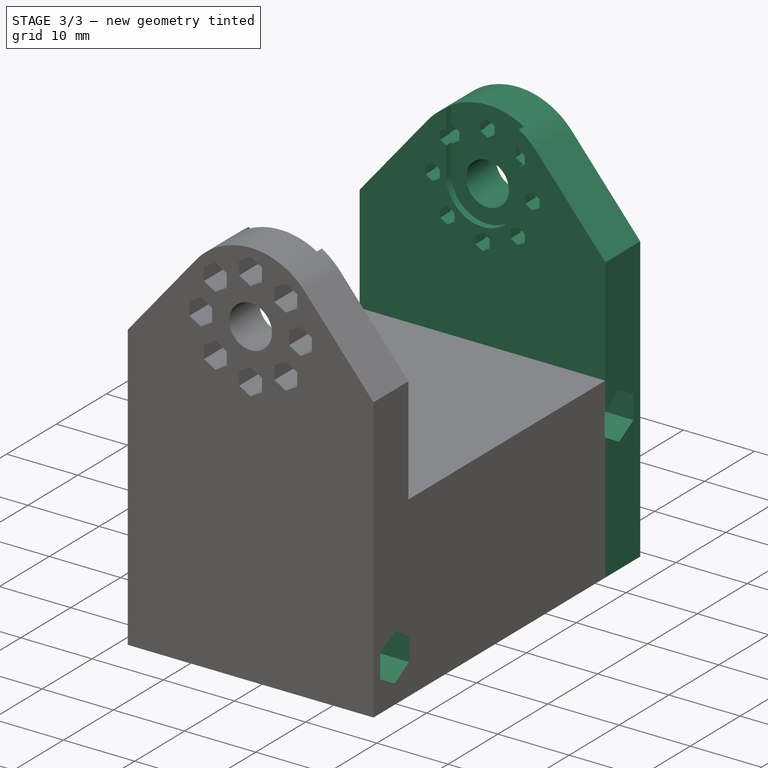
[diagram: stage 3 of 3 — iso view after this stage's code; geometry added in this stage tinted green]
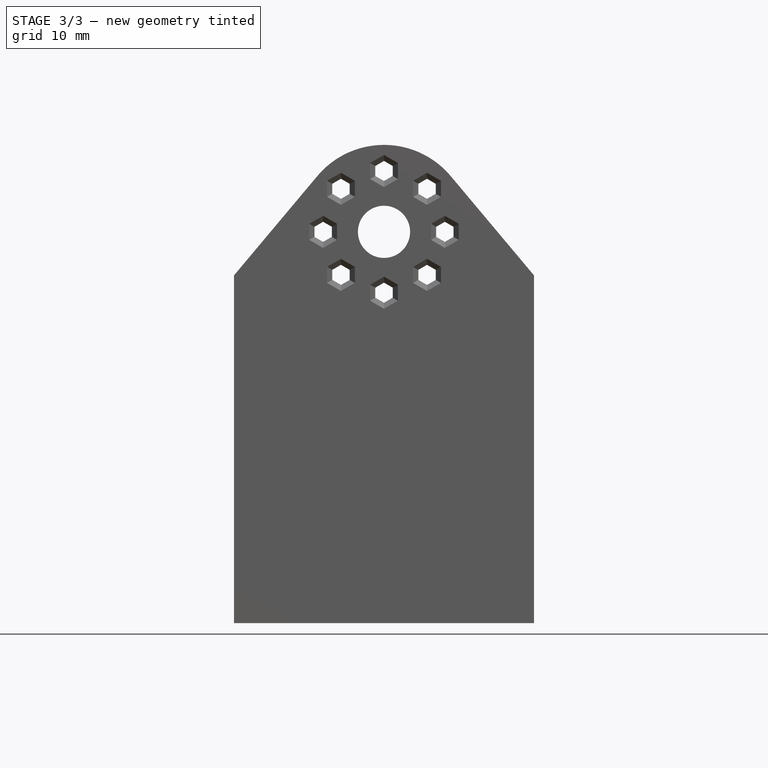
[diagram: stage 3 of 3 — front view after this stage's code; geometry added in this stage tinted green]
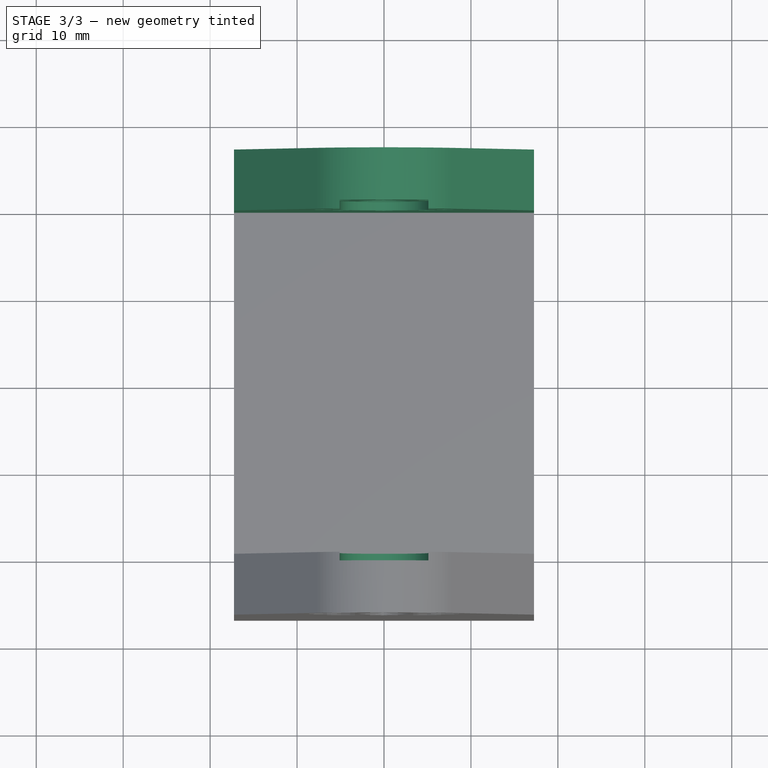
[diagram: stage 3 of 3 — top view after this stage's code; geometry added in this stage tinted green]
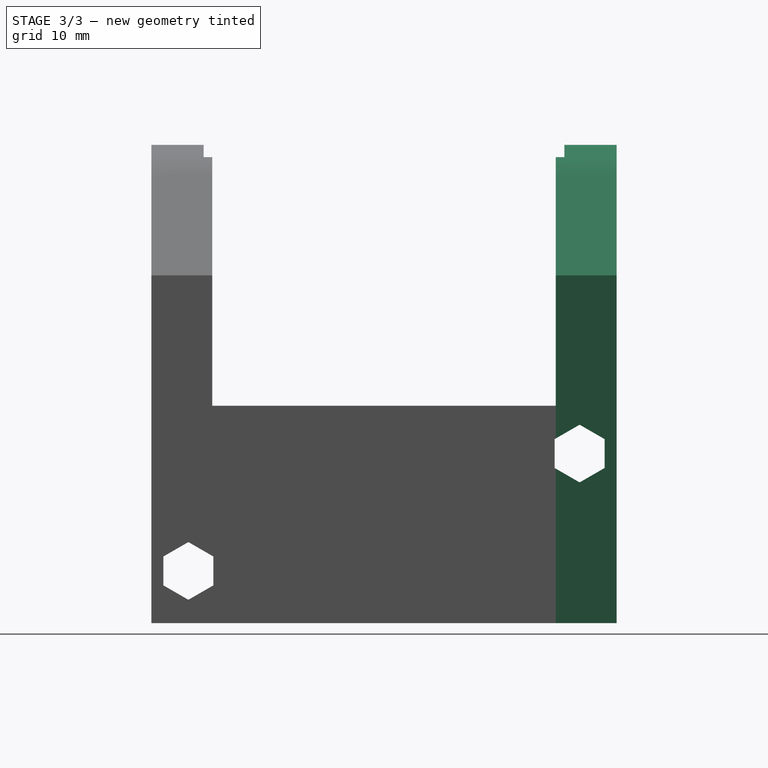
[diagram: stage 3 of 3 — right view after this stage's code; geometry added in this stage tinted green]
FEATURE [Sketcher::SketchObject] Sketch004
  ExternalGeometry = -> [Chamfer]
  FullyConstrained = true
  MapMode = 5
  Placement = pos=(0,-19.75,3.9e-15) rot=(0,0.707107,0.707107;3.14159rad)
  Support = -> [Chamfer]
  sketch-geometry (4):
    g0: ArcOfCircle CenterX=0 CenterY=45 CenterZ=0 NormalX=0 NormalY=0 NormalZ=1 AngleXU=0 Radius=5.1 StartAngle=3.14159 EndAngle=6.28319
    g1: LineSegment StartX=-5.1 StartY=45 StartZ=0 EndX=-5.1 EndY=55 EndZ=0
    g2: LineSegment StartX=5.1 StartY=45 StartZ=0 EndX=5.1 EndY=55 EndZ=0
    g3: LineSegment StartX=5.1 StartY=55 StartZ=0 EndX=-5.1 EndY=55 EndZ=0
  constraints (10):
    c: Coincident(g0,g-3)
    c: Vertical(g1)
    c: Vertical(g2)
    c: Coincident(g3,g2)
    c: Coincident(g3,g1)
    c: Horizontal(g3)
    c: DistanceY(g0,g2) = 10
    c: Diameter(g0) = 10.2
    c: Tangent(g2,g0) = -1.5708
    c: Tangent(g1,g0) = 1.5708
FEATURE [PartDesign::Pocket] Pocket002
  BaseFeature = -> Chamfer
  Direction = (0,-1,2e-16)
  Length = 1
  Length2 = 5
  Profile = -> Sketch004
  ReferenceAxis = -> Sketch004 [N_Axis]
  Type = 0
FEATURE [PartDesign::Mirrored] Mirrored
  BaseFeature = -> Pocket002
  MirrorPlane = -> XZ_Plane
  Originals = -> [Pad001,Pocket,Pocket001,Chamfer,Pocket002]
FEATURE [Sketcher::SketchObject] Sketch005
  FullyConstrained = true
  MapMode = 5
  Placement = pos=(17.25,0,0) rot=(0.57735,0.57735,0.57735;2.0944rad)
  Support = -> [Mirrored]
  sketch-geometry (16):
    g0: LineSegment StartX=22.5 StartY=22.8198 StartZ=0 EndX=19.625 EndY=21.1599 EndZ=0
    g1: LineSegment StartX=19.625 StartY=21.1599 StartZ=0 EndX=19.625 EndY=17.8401 EndZ=0
    g2: LineSegment StartX=19.625 StartY=17.8401 StartZ=0 EndX=22.5 EndY=16.1802 EndZ=0
    g3: LineSegment StartX=22.5 StartY=16.1802 StartZ=0 EndX=25.375 EndY=17.8401 EndZ=0
    g4: LineSegment StartX=25.375 StartY=17.8401 StartZ=0 EndX=25.375 EndY=21.1599 EndZ=0
    g5: LineSegment StartX=25.375 StartY=21.1599 StartZ=0 EndX=22.5 EndY=22.8198 EndZ=0
    g6: Circle CenterX=22.5 CenterY=19.5 CenterZ=0 NormalX=0 NormalY=0 NormalZ=1 AngleXU=0 Radius=3.31976
    g7: LineSegment StartX=-22.5 StartY=9.31976 StartZ=0 EndX=-25.375 EndY=7.65988 EndZ=0
    g8: LineSegment StartX=-25.375 StartY=7.65988 StartZ=0 EndX=-25.375 EndY=4.34012 EndZ=0
    g9: LineSegment StartX=-25.375 StartY=4.34012 StartZ=0 EndX=-22.5 EndY=2.68024 EndZ=0
    g10: LineSegment StartX=-22.5 StartY=2.68024 StartZ=0 EndX=-19.625 EndY=4.34012 EndZ=0
    g11: LineSegment StartX=-19.625 StartY=4.34012 StartZ=0 EndX=-19.625 EndY=7.65988 EndZ=0
    g12: LineSegment StartX=-19.625 StartY=7.65988 StartZ=0 EndX=-22.5 EndY=9.31976 EndZ=0
    g13: Circle CenterX=-22.5 CenterY=6 CenterZ=0 NormalX=0 NormalY=0 NormalZ=1 AngleXU=0 Radius=3.31976
    g14: LineSegment StartX=-22.5 StartY=6 StartZ=0 EndX=22.5 EndY=6 EndZ=0
    g15: LineSegment StartX=22.5 StartY=6 StartZ=0 EndX=22.5 EndY=19.5 EndZ=0
  constraints (38):
    c: Coincident(g0,g1)
    c: Coincident(g1,g2)
    c: Coincident(g2,g3)
    c: Coincident(g3,g4)
    c: Coincident(g4,g5)
    c: Coincident(g5,g0)
    c: Equal(g0, g1-g5) x5
    c: PointOnObject(g0,g6)
    c: PointOnObject(g1,g6)
    c: PointOnObject(g2,g6)
    c: PointOnObject(g3,g6)
    c: PointOnObject(g4,g6)
    c: PointOnObject(g5,g6)
    c: Coincident(g7,g8)
    c: Coincident(g8,g9)
    c: Coincident(g9,g10)
    c: Coincident(g10,g11)
    c: Coincident(g11,g12)
    c: Coincident(g12,g7)
    c: Equal(g7, g8-g12) x5
    c: PointOnObject(g7,g13)
    c: PointOnObject(g8,g13)
    c: PointOnObject(g9,g13)
    c: PointOnObject(g10,g13)
    c: PointOnObject(g11,g13)
    c: PointOnObject(g12,g13)
    c: Equal(g13,g6)
    c: Vertical(g4)
    c: Vertical(g11)
    c: Coincident(g15,g14)
    c: Vertical(g15)
    c: DistanceX(g14,g14) = 45
    c: DistanceY(g15,g15) = 13.5
    c: Symmetric(g13,g14,g-2)
    c: Coincident(g6,g15)
    c: Coincident(g13,g14)
    c: DistanceY(g-1,g13) = 6
    c: DistanceX(g0,g4) = 5.75
FEATURE [PartDesign::Pocket] Pocket003
  BaseFeature = -> Mirrored
  Direction = (-1,0,0)
  Length = 5
  Length2 = 5
  Profile = -> Sketch005
  ReferenceAxis = -> Sketch005 [N_Axis]
  Type = 1
FEATURE [PartDesign::Body] Body
  Group = -> [Sketch001,Pad,Sketch,Pad001,Sketch002,Pocket,Sketch003,Pocket001,Chamfer,Sketch004,Pocket002,Mirrored,Sketch005,Pocket003]
  Origin = -> Origin
  Tip = -> Pocket003
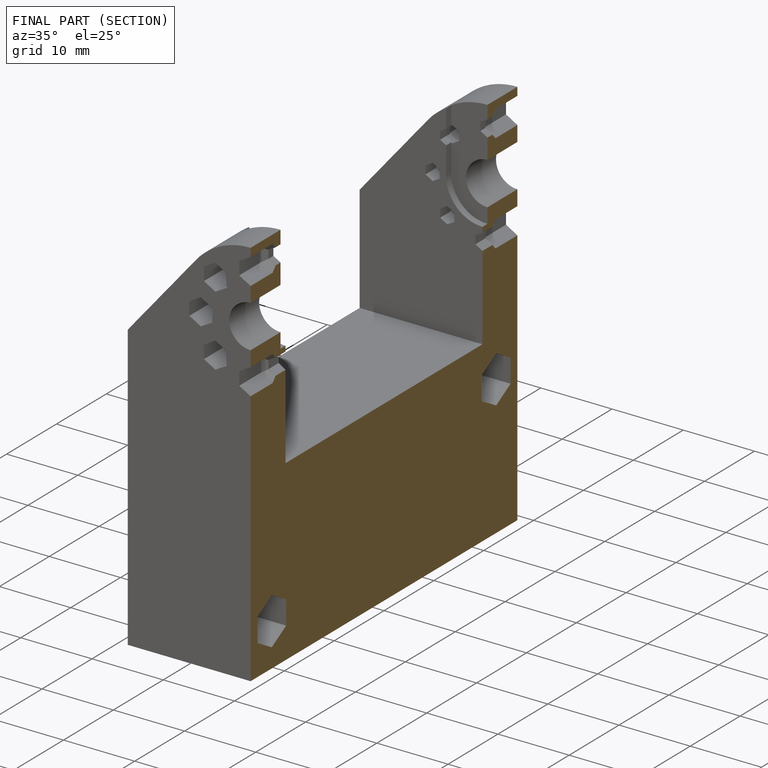
[diagram: finished part — half-section view (interior)]
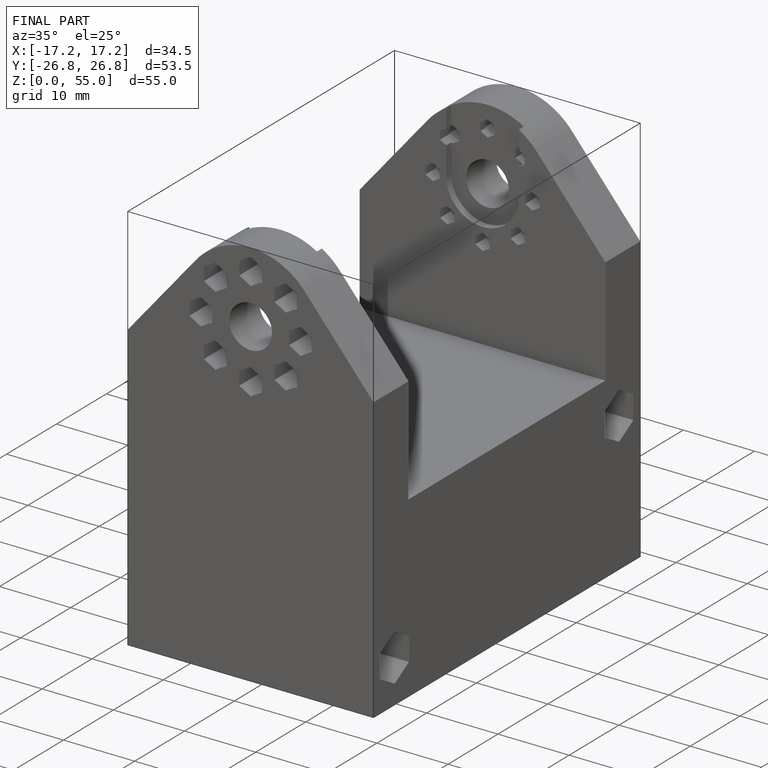
[diagram: finished part — iso view with bounding-box wireframe]
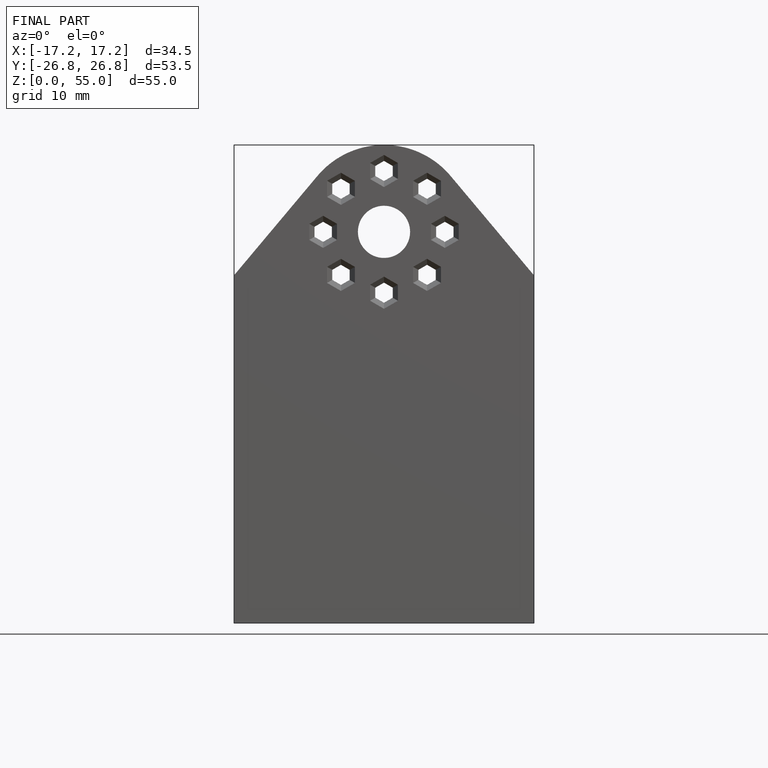
[diagram: finished part — front view with bounding-box wireframe]
